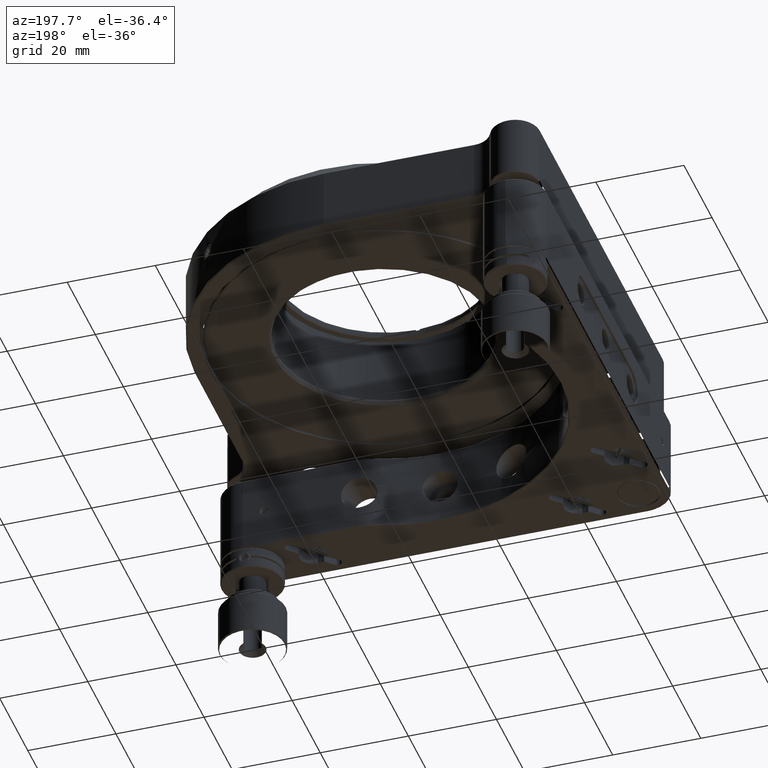
[diagram: clean part render]
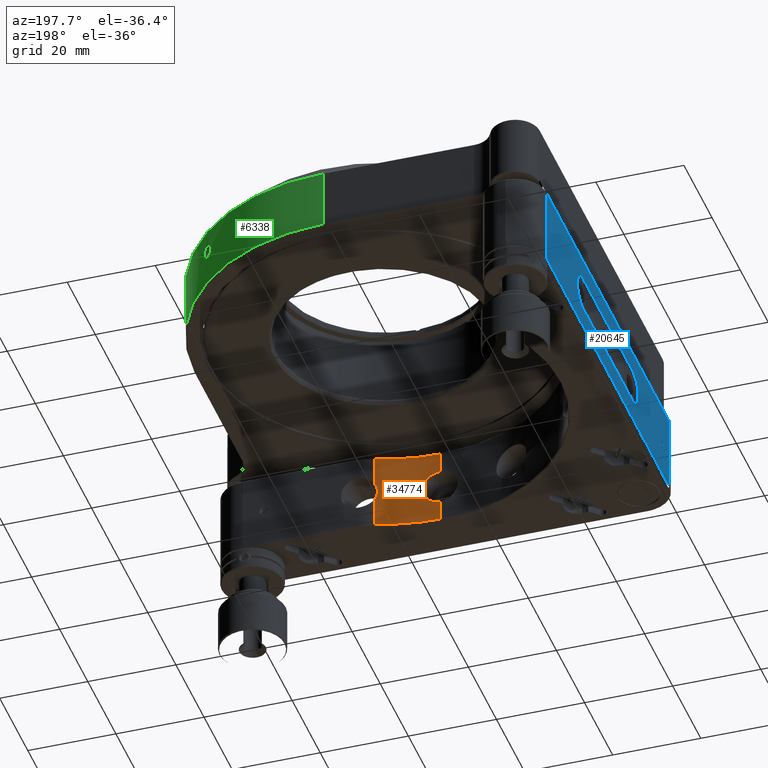
[diagram: same view with three faces highlighted in distinct colors, each labeled with its STEP entity id]
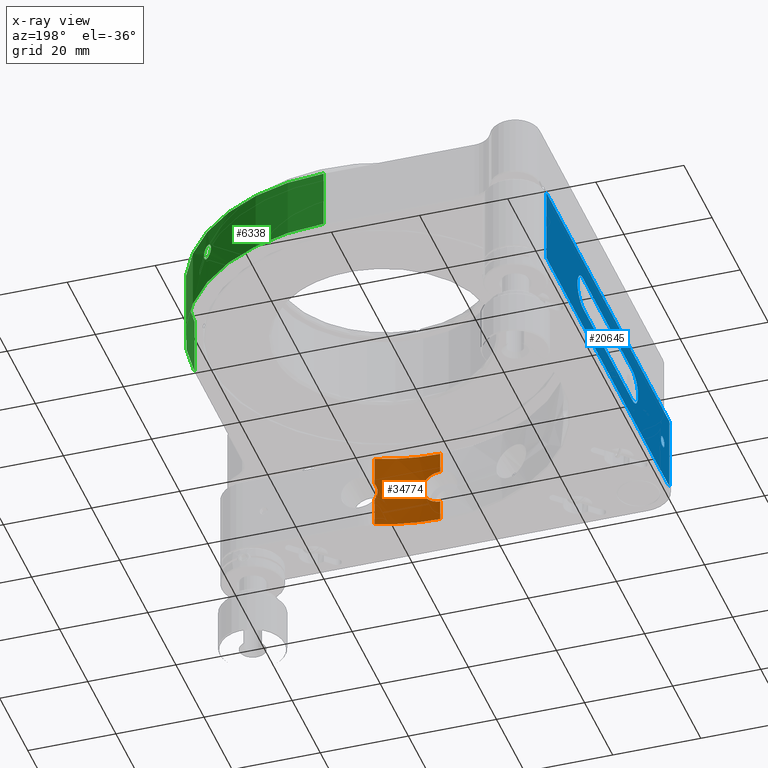
[diagram: x-ray of the same camera — body ghosted, the three highlighted faces saturated]
A machine part, auxiliary view with three faces highlighted in distinct colors.
The next image is the same camera in x-ray (body ghosted, the three faces saturated) — at least one of them is partly hidden behind the body in this view.
Their STEP definitions:

[orange] entity #34774 — the highlighted face is a freeform B-spline surface patch.
#690 = VERTEX_POINT ( 'NONE', #14595 ) ;
#780 = CARTESIAN_POINT ( 'NONE',  ( 13.63287937804751593, -37.60510415909933357, -1.026770556983841676 ) ) ;
#1533 = DIRECTION ( 'NONE',  ( 0.000000000000000000, 0.000000000000000000, 1.000000000000000000 ) ) ;
#1700 = CARTESIAN_POINT ( 'NONE',  ( 39.99999999999997868, -39.99999999999999289, 10.50119999999999543 ) ) ;
#1863 = CARTESIAN_POINT ( 'NONE',  ( 3.519397071731725113, -39.84538642004867626, -1.973360513163583185 ) ) ;
#1928 = EDGE_CURVE ( 'NONE', #690, #8670, #21361, .T. ) ;
#2097 = EDGE_CURVE ( 'NONE', #2137, #26670, #9236, .T. ) ;
#2137 = VERTEX_POINT ( 'NONE', #19058 ) ;
#2278 = CARTESIAN_POINT ( 'NONE',  ( 2.449293598294706513E-15, 40.00000000000000000, -10.50120000000001319 ) ) ;
#2463 = CARTESIAN_POINT ( 'NONE',  ( 14.07999999999999119, -37.44000000000000483, -2.074511990806465977 ) ) ;
#3799 = EDGE_CURVE ( 'NONE', #32766, #2137, #25277, .T. ) ;
#3901 = CARTESIAN_POINT ( 'NONE',  ( 3.215418730733079045, -39.87244594441865075, 2.441187104894928073 ) ) ;
#3988 = CARTESIAN_POINT ( 'NONE',  ( 1.656376832334223923E-15, 6.350470583435192552E-15, 8.749999999999991118 ) ) ;
#4106 = CARTESIAN_POINT ( 'NONE',  ( 3.885522015518404260, -39.81086367741998089, 0.9833877114194381486 ) ) ;
#4110 = AXIS2_PLACEMENT_3D ( 'NONE', #23801, #12160, #35820 ) ;
#4137 = CARTESIAN_POINT ( 'NONE',  ( 13.56973177621848770, -37.62804346736849936, -0.7495624359231507494 ) ) ;
#5005 = CARTESIAN_POINT ( 'NONE',  ( 0.4765625274126686906, -39.99999999958002661, -3.999999999999995559 ) ) ;
#5196 = CARTESIAN_POINT ( 'NONE',  ( 3.215425191061494381, -39.87244557101547571, -2.441178943521482569 ) ) ;
#5980 = ORIENTED_EDGE ( 'NONE', *, *, #33314, .F. ) ;
#6271 = CARTESIAN_POINT ( 'NONE',  ( -7.347880794884118356E-15, -40.00000000000000000, -8.673617379884035472E-15 ) ) ;
#6952 = DIRECTION ( 'NONE',  ( 8.673617379884037937E-17, -8.673617379884036705E-17, -1.000000000000000000 ) ) ;
#7237 = DIRECTION ( 'NONE',  ( 0.000000000000000000, 0.000000000000000000, 1.000000000000000000 ) ) ;
#7287 = CARTESIAN_POINT ( 'NONE',  ( 13.50055325483618418, -37.65283144926868886, -0.1976777488494766422 ) ) ;
#7312 = CARTESIAN_POINT ( 'NONE',  ( 3.001117515795942703E-15, -40.00000000000000000, 3.999999999999994671 ) ) ;
#7472 = CARTESIAN_POINT ( 'NONE',  ( 14.07999999999999119, -37.44000000000000483, -2.074511990806465977 ) ) ;
#7998 = FACE_OUTER_BOUND ( 'NONE', #20945, .T. ) ;
#8670 = VERTEX_POINT ( 'NONE', #13414 ) ;
#9236 = LINE ( 'NONE', #6271, #37662 ) ;
#9849 = CARTESIAN_POINT ( 'NONE',  ( 13.51394774053591163, -37.64818490931023121, -0.3819421727681659440 ) ) ;
#10209 = CARTESIAN_POINT ( 'NONE',  ( 3.978614652292685960, -39.80169512250888886, 0.4847248421640010796 ) ) ;
#10419 = ORIENTED_EDGE ( 'NONE', *, *, #1928, .F. ) ;
#10778 = EDGE_CURVE ( 'NONE', #38081, #690, #36834, .T. ) ;
#10951 = CARTESIAN_POINT ( 'NONE',  ( -39.99999999999999289, 39.99999999999999289, -10.50120000000001319 ) ) ;
#10977 = DIRECTION ( 'NONE',  ( -0.000000000000000000, -0.000000000000000000, -1.000000000000000000 ) ) ;
#11336 = CARTESIAN_POINT ( 'NONE',  ( 40.00000000000000000, 0.000000000000000000, -10.50120000000001319 ) ) ;
#12160 = DIRECTION ( 'NONE',  ( 4.336808689942017120E-17, 4.336808689942018352E-17, 1.000000000000000000 ) ) ;
#12760 = CARTESIAN_POINT ( 'NONE',  ( 3.999999609537605139, -39.79949734221266056, 0.2383544001114116795 ) ) ;
#12962 = CARTESIAN_POINT ( 'NONE',  ( 3.519391159990551632, -39.84538684044147772, 1.973370648552619899 ) ) ;
#13414 = CARTESIAN_POINT ( 'NONE',  ( -4.310163876117375622E-15, -40.00000000000000711, 8.749999999999994671 ) ) ;
#13522 = CARTESIAN_POINT ( 'NONE',  ( 14.07999999999999474, -37.44000000000001194, -8.750000000000017764 ) ) ;
#13864 = CARTESIAN_POINT ( 'NONE',  ( 1.975878666759980584, -39.95420158969062641, -3.518120793756081444 ) ) ;
#13888 = CARTESIAN_POINT ( 'NONE',  ( -7.347880794884118356E-15, -40.00000000000000000, 10.50119999999999543 ) ) ;
#13938 = EDGE_CURVE ( 'NONE', #8670, #32766, #32063, .T. ) ;
#14091 = CARTESIAN_POINT ( 'NONE',  ( 5.884233204720381923E-16, -40.00000000000000711, -8.750000000000017764 ) ) ;
#14274 = CARTESIAN_POINT ( 'NONE',  ( 39.99999999999999289, 39.99999999999999289, 10.50119999999999543 ) ) ;
#14595 = CARTESIAN_POINT ( 'NONE',  ( 14.07999999999999829, -37.44000000000001194, 8.749999999999998224 ) ) ;
#15903 = CARTESIAN_POINT ( 'NONE',  ( 1.975873954369209429, -39.95420231395690536, 3.518123257257119274 ) ) ;
#15978 = B_SPLINE_CURVE_WITH_KNOTS ( 'NONE', 3,
 ( #7472, #30934, #19487, #780, #28366, #4137, #30737, #9849, #7287, #21866, #22067, #24633, #36665, #19298, #27778, #31515 ),
 .UNSPECIFIED., .F., .F.,
 ( 4, 2, 2, 2, 2, 2, 2, 4 ),
 ( -0.006660683217793022040, -0.005568962689862774762, -0.005296032557880212509, -0.005023102425897651123, -0.004477242161932526616, -0.003931381897967402977, -0.003385521634002277604, -0.002293801106072025121 ),
 .UNSPECIFIED. ) ;
#15997 = VECTOR ( 'NONE', #1533, 1000.000000000000000 ) ;
#16109 = CARTESIAN_POINT ( 'NONE',  ( 3.690136085475475221E-15, -40.00000000000000000, -3.999999999999994227 ) ) ;
#16661 = CARTESIAN_POINT ( 'NONE',  ( -7.347880794884118356E-15, -40.00000000000000000, -10.50120000000001319 ) ) ;
#16914 =( BOUNDED_SURFACE ( )  B_SPLINE_SURFACE ( 1, 2, ( 
 ( #11336, #38157, #2278, #10951, #23368, #37773, #16661, #37957, #25742 ),
 ( #32429, #14274, #20002, #29270, #22979, #20198, #13888, #1700, #25926 ) ),
 .UNSPECIFIED., .F., .F., .F. ) 
 B_SPLINE_SURFACE_WITH_KNOTS ( ( 2, 2 ),
 ( 3, 2, 2, 2, 3 ),
 ( 0.000000000000000000, 21.00240000000001217 ),
 ( 0.000000000000000000, 1.570796326794896558, 3.141592653589793116, 4.712388980384689674, 6.283185307179586232 ),
 .UNSPECIFIED. ) 
 GEOMETRIC_REPRESENTATION_ITEM ( )  RATIONAL_B_SPLINE_SURFACE ( (
 ( 1.000000000000000000, 0.7071067811865475727, 1.000000000000000000, 0.7071067811865475727, 1.000000000000000000, 0.7071067811865475727, 1.000000000000000000, 0.7071067811865475727, 1.000000000000000000),
 ( 1.000000000000000000, 0.7071067811865475727, 1.000000000000000000, 0.7071067811865475727, 1.000000000000000000, 0.7071067811865475727, 1.000000000000000000, 0.7071067811865475727, 1.000000000000000000) ) ) 
 REPRESENTATION_ITEM ( '' )  SURFACE ( )  );
#17886 = EDGE_CURVE ( 'NONE', #38838, #21712, #34229, .T. ) ;
#18303 = ORIENTED_EDGE ( 'NONE', *, *, #13938, .F. ) ;
#19058 = CARTESIAN_POINT ( 'NONE',  ( 3.690136085475475221E-15, -40.00000000000000000, -3.999999999999994227 ) ) ;
#19063 = CARTESIAN_POINT ( 'NONE',  ( 0.4765613040638119746, -39.99999999958063057, 3.999999999999995559 ) ) ;
#19298 = CARTESIAN_POINT ( 'NONE',  ( 13.75661566367995370, -37.56017539286534657, 1.459813531991916546 ) ) ;
#19418 = ORIENTED_EDGE ( 'NONE', *, *, #10778, .F. ) ;
#19435 = CARTESIAN_POINT ( 'NONE',  ( 14.07999999999999652, -37.44000000000001194, -5.412255995403238096 ) ) ;
#19487 = CARTESIAN_POINT ( 'NONE',  ( 13.76448059959076531, -37.55748766687482743, -1.479178728847029278 ) ) ;
#20002 = CARTESIAN_POINT ( 'NONE',  ( 2.449293598294706513E-15, 40.00000000000000000, 10.50119999999999543 ) ) ;
#20175 = CARTESIAN_POINT ( 'NONE',  ( 3.813545314633025818, -39.81795139080806933, 1.235697615372659541 ) ) ;
#20198 = CARTESIAN_POINT ( 'NONE',  ( -39.99999999999999289, -39.99999999999999289, 10.50119999999999543 ) ) ;
#20945 = EDGE_LOOP ( 'NONE', ( #37735, #29751, #18303, #10419, #19418, #21404, #38872, #5980 ) ) ;
#21361 = CIRCLE ( 'NONE', #30728, 39.99999999999999289 ) ;
#21404 = ORIENTED_EDGE ( 'NONE', *, *, #36143, .F. ) ;
#21712 = VERTEX_POINT ( 'NONE', #2463 ) ;
#21866 = CARTESIAN_POINT ( 'NONE',  ( 13.49947998839582475, -37.65319942009507770, 0.1746149951927875865 ) ) ;
#22067 = CARTESIAN_POINT ( 'NONE',  ( 13.51183360570558456, -37.64894075618875746, 0.3591353039863156571 ) ) ;
#22979 = CARTESIAN_POINT ( 'NONE',  ( -40.00000000000000000, 4.898587196589413026E-15, 10.50119999999999543 ) ) ;
#23146 = CARTESIAN_POINT ( 'NONE',  ( 4.000000390451672772, -39.79949762397258439, -0.2383412946594437865 ) ) ;
#23368 = CARTESIAN_POINT ( 'NONE',  ( -40.00000000000000000, 4.898587196589413026E-15, -10.50120000000001319 ) ) ;
#23801 = CARTESIAN_POINT ( 'NONE',  ( -5.282517071573005440E-15, -7.370623937094102200E-15, -8.750000000000023093 ) ) ;
#24633 = CARTESIAN_POINT ( 'NONE',  ( 13.56222754469781933, -37.63080504790737280, 0.7269095166608742220 ) ) ;
#24997 = CARTESIAN_POINT ( 'NONE',  ( 14.07999999999999474, -37.44000000000000483, 5.412255995403233655 ) ) ;
#25277 = B_SPLINE_CURVE_WITH_KNOTS ( 'NONE', 3,
 ( #31097, #19063, #37027, #15903, #28860, #3901, #12962, #20175, #4106, #10209, #12760, #23146, #32202, #35172, #27746, #1863, #5196, #34987, #13864, #26096, #5005, #16109 ),
 .UNSPECIFIED., .F., .F.,
 ( 4, 2, 2, 2, 2, 2, 2, 2, 2, 2, 4 ),
 ( -0.02502434335384317796, -0.02346050532294523955, -0.02189666729204730461, -0.02033282926114936620, -0.01955091024570039873, -0.01876899123025143126, -0.01798707221480246032, -0.01720515319935349285, -0.01564131516845555792, -0.01407747713755762124, -0.01251363910665968630 ),
 .UNSPECIFIED. ) ;
#25476 = DIRECTION ( 'NONE',  ( -1.320629267893251311E-16, 1.000000000000000000, -8.673617379884036705E-17 ) ) ;
#25742 = CARTESIAN_POINT ( 'NONE',  ( 40.00000000000000000, 0.000000000000000000, -10.50120000000001319 ) ) ;
#25926 = CARTESIAN_POINT ( 'NONE',  ( 40.00000000000000000, 0.000000000000000000, 10.50119999999999543 ) ) ;
#26096 = CARTESIAN_POINT ( 'NONE',  ( 0.9908095383407984347, -39.99076998910314273, -3.911466078588563544 ) ) ;
#26227 = DIRECTION ( 'NONE',  ( -0.000000000000000000, -0.000000000000000000, -1.000000000000000000 ) ) ;
#26670 = VERTEX_POINT ( 'NONE', #14091 ) ;
#27746 = CARTESIAN_POINT ( 'NONE',  ( 3.813549650651678391, -39.81795192455354027, -1.235684396547622743 ) ) ;
#27778 = CARTESIAN_POINT ( 'NONE',  ( 13.90692471868812774, -37.50508813998054336, 1.789183458260129811 ) ) ;
#28366 = CARTESIAN_POINT ( 'NONE',  ( 13.60932041941838300, -37.61366420402151078, -0.9335226603886006558 ) ) ;
#28860 = CARTESIAN_POINT ( 'NONE',  ( 2.443252372976513431, -39.92717707775732094, 3.213849706660070638 ) ) ;
#29270 = CARTESIAN_POINT ( 'NONE',  ( -39.99999999999999289, 39.99999999999999289, 10.50119999999999543 ) ) ;
#29751 = ORIENTED_EDGE ( 'NONE', *, *, #3799, .F. ) ;
#30728 = AXIS2_PLACEMENT_3D ( 'NONE', #3988, #6952, #25476 ) ;
#30737 = CARTESIAN_POINT ( 'NONE',  ( 13.55335291703554290, -37.63398285802266230, -0.6577232793184515369 ) ) ;
#30934 = CARTESIAN_POINT ( 'NONE',  ( 13.90799321473310179, -37.50468631240804740, -1.790944959996450203 ) ) ;
#31097 = CARTESIAN_POINT ( 'NONE',  ( 3.001117515795942703E-15, -40.00000000000000000, 3.999999999999994671 ) ) ;
#31515 = CARTESIAN_POINT ( 'NONE',  ( 14.07999999999999297, -37.44000000000000483, 2.074511990806471307 ) ) ;
#32063 = LINE ( 'NONE', #34642, #39007 ) ;
#32202 = CARTESIAN_POINT ( 'NONE',  ( 3.978616284994584085, -39.80169473619176301, -0.4847113597111002425 ) ) ;
#32429 = CARTESIAN_POINT ( 'NONE',  ( 40.00000000000000000, 0.000000000000000000, 10.50119999999999543 ) ) ;
#32676 = VECTOR ( 'NONE', #7237, 1000.000000000000000 ) ;
#32720 = CARTESIAN_POINT ( 'NONE',  ( 14.07999999999999297, -37.44000000000000483, 2.074511990806471307 ) ) ;
#32766 = VERTEX_POINT ( 'NONE', #7312 ) ;
#33314 = EDGE_CURVE ( 'NONE', #26670, #38838, #38091, .T. ) ;
#34229 = LINE ( 'NONE', #19435, #32676 ) ;
#34642 = CARTESIAN_POINT ( 'NONE',  ( -7.347880794884118356E-15, -40.00000000000000000, -8.673617379884035472E-15 ) ) ;
#34774 = ADVANCED_FACE ( 'NONE', ( #7998 ), #16914, .T. ) ;
#34987 = CARTESIAN_POINT ( 'NONE',  ( 2.443258331880643563, -39.92717674125447758, -3.213845440792278296 ) ) ;
#35172 = CARTESIAN_POINT ( 'NONE',  ( 3.885525414005050138, -39.81086333955284573, -0.9833742433976793151 ) ) ;
#35820 = DIRECTION ( 'NONE',  ( 4.140942080835557836E-17, 1.000000000000000000, -4.336808689942015271E-17 ) ) ;
#36143 = EDGE_CURVE ( 'NONE', #21712, #38081, #15978, .T. ) ;
#36665 = CARTESIAN_POINT ( 'NONE',  ( 13.60082491177641906, -37.61676486160759225, 0.9123755207011845503 ) ) ;
#36834 = LINE ( 'NONE', #24997, #15997 ) ;
#37027 = CARTESIAN_POINT ( 'NONE',  ( 0.9908066813477114376, -39.99076952265112794, 3.911466637593215889 ) ) ;
#37662 = VECTOR ( 'NONE', #26227, 1000.000000000000000 ) ;
#37735 = ORIENTED_EDGE ( 'NONE', *, *, #2097, .F. ) ;
#37773 = CARTESIAN_POINT ( 'NONE',  ( -39.99999999999999289, -39.99999999999999289, -10.50120000000001319 ) ) ;
#37957 = CARTESIAN_POINT ( 'NONE',  ( 39.99999999999997868, -39.99999999999999289, -10.50120000000001319 ) ) ;
#38081 = VERTEX_POINT ( 'NONE', #32720 ) ;
#38091 = CIRCLE ( 'NONE', #4110, 40.00000000000002132 ) ;
#38157 = CARTESIAN_POINT ( 'NONE',  ( 39.99999999999999289, 39.99999999999999289, -10.50120000000001319 ) ) ;
#38838 = VERTEX_POINT ( 'NONE', #13522 ) ;
#38872 = ORIENTED_EDGE ( 'NONE', *, *, #17886, .F. ) ;
#39007 = VECTOR ( 'NONE', #10977, 1000.000000000000000 ) ;

[blue] entity #20645 — the highlighted planar face has unit normal (-1, -0, 0).
#91 = CARTESIAN_POINT ( 'NONE',  ( -50.79999999999999716, -38.04407768234457876, -0.7618446353109037394 ) ) ;
#285 = FACE_OUTER_BOUND ( 'NONE', #9765, .T. ) ;
#546 = CARTESIAN_POINT ( 'NONE',  ( -50.80000000000000426, 21.41408504474602381, -0.9799910367119678556 ) ) ;
#1137 = CARTESIAN_POINT ( 'NONE',  ( -50.80000000000001137, 18.47999103671197574, -3.914085044746025588 ) ) ;
#1145 = LINE ( 'NONE', #22029, #19385 ) ;
#1937 = CARTESIAN_POINT ( 'NONE',  ( -50.79999999999999716, -39.05000000000002558, 1.249999999999988898 ) ) ;
#2211 = EDGE_CURVE ( 'NONE', #3542, #32251, #1145, .T. ) ;
#2523 = VECTOR ( 'NONE', #28110, 1000.000000000000000 ) ;
#2718 = CARTESIAN_POINT ( 'NONE',  ( -50.79999999999999716, -40.27315157648312294, 0.3062471989724875887 ) ) ;
#2796 = DIRECTION ( 'NONE',  ( -0.000000000000000000, -0.000000000000000000, -1.000000000000000000 ) ) ;
#3040 = CARTESIAN_POINT ( 'NONE',  ( -50.79999999999998295, -38.43601042506782761, 1.101319176172932179 ) ) ;
#3430 = CARTESIAN_POINT ( 'NONE',  ( -50.79999999999999716, -38.43601042506782761, -1.101319176172930625 ) ) ;
#3542 = VERTEX_POINT ( 'NONE', #18673 ) ;
#3545 = CARTESIAN_POINT ( 'NONE',  ( -50.80000000000001847, -17.97140452079104733, 4.000000000000006217 ) ) ;
#3774 = B_SPLINE_CURVE_WITH_KNOTS ( 'NONE', 3,
 ( #9804, #16097, #1137, #12946, #15890, #9998, #13331, #546, #15696, #31282, #27733, #24787, #12745, #33658, #30697, #24592, #36818, #33847 ),
 .UNSPECIFIED., .F., .F.,
 ( 4, 2, 2, 2, 2, 2, 2, 2, 4 ),
 ( -12.56637061435916891, -10.99557428756427235, -9.424777960769375795, -7.853981633974481014, -6.283185307179584456, -4.712388980384687898, -3.141592653589793116, -1.570796326794896558, 0.000000000000000000 ),
 .UNSPECIFIED. ) ;
#4018 = B_SPLINE_CURVE_WITH_KNOTS ( 'NONE', 3,
 ( #36365, #6188, #6381, #3040, #33000, #15043, #12305, #32796, #8946, #18393, #26884, #6581, #91, #11710, #3430, #30424, #27469, #15236 ),
 .UNSPECIFIED., .F., .F.,
 ( 4, 2, 2, 2, 2, 2, 2, 2, 4 ),
 ( -3.926990816987200983, -3.436116964863801027, -2.945243112740400626, -2.454369260617000670, -1.963495408493600491, -1.472621556370200313, -0.9817477042468003567, -0.4908738521233999563, 0.000000000000000000 ),
 .UNSPECIFIED. ) ;
#4368 = CARTESIAN_POINT ( 'NONE',  ( -50.80000000000000426, -39.35624719897250401, 1.223151576483120895 ) ) ;
#5008 = AXIS2_PLACEMENT_3D ( 'NONE', #33002, #21554, #12672 ) ;
#5075 = CARTESIAN_POINT ( 'NONE',  ( -50.79999999999999716, -39.66398957493219513, 1.101319176172933068 ) ) ;
#5762 = LINE ( 'NONE', #14418, #36196 ) ;
#6128 = EDGE_CURVE ( 'NONE', #28092, #26520, #37900, .T. ) ;
#6130 = CARTESIAN_POINT ( 'NONE',  ( -50.80000000000000426, 52.56119999999997816, 3.999999999999994671 ) ) ;
#6188 = CARTESIAN_POINT ( 'NONE',  ( -50.79999999999999716, -38.90268608725281752, 1.249999999999988898 ) ) ;
#6381 = CARTESIAN_POINT ( 'NONE',  ( -50.80000000000000426, -38.74375280102753294, 1.223151576483118230 ) ) ;
#6540 = CARTESIAN_POINT ( 'NONE',  ( -50.79999999999999716, -39.05000000000002558, -1.249999999999987121 ) ) ;
#6581 = CARTESIAN_POINT ( 'NONE',  ( -50.79999999999999005, -37.94868082382705410, -0.6139895749321856444 ) ) ;
#7236 = CARTESIAN_POINT ( 'NONE',  ( -50.79999999999999716, -39.05000000000002558, -1.249999999999987121 ) ) ;
#7470 = CARTESIAN_POINT ( 'NONE',  ( -50.80000000000000426, -21.41408504474603092, -0.9799910367119645249 ) ) ;
#8454 = CARTESIAN_POINT ( 'NONE',  ( -50.79999999999999716, 43.79999999999998295, -8.750000000000012434 ) ) ;
#8465 = EDGE_CURVE ( 'NONE', #11608, #3542, #5762, .T. ) ;
#8946 = CARTESIAN_POINT ( 'NONE',  ( -50.80000000000000426, -37.80000000000002558, 0.1473139127471958243 ) ) ;
#8996 = LINE ( 'NONE', #26536, #18880 ) ;
#9156 = PLANE ( 'NONE',  #5008 ) ;
#9498 = CARTESIAN_POINT ( 'NONE',  ( -50.79999999999998295, -39.66398957493219513, -1.101319176172933290 ) ) ;
#9689 = CARTESIAN_POINT ( 'NONE',  ( -50.79999999999999716, -39.05000000000002558, 1.249999999999988898 ) ) ;
#9765 = EDGE_LOOP ( 'NONE', ( #17775, #21286, #36647, #36864 ) ) ;
#9804 = CARTESIAN_POINT ( 'NONE',  ( -50.80000000000001137, 17.49999999999999645, -4.000000000000000888 ) ) ;
#9998 = CARTESIAN_POINT ( 'NONE',  ( -50.80000000000000426, 20.71895141649746463, -2.437902832994920832 ) ) ;
#10038 = CARTESIAN_POINT ( 'NONE',  ( -50.79999999999999716, -20.71895141649746108, -2.437902832994916391 ) ) ;
#10279 = CARTESIAN_POINT ( 'NONE',  ( -50.79999999999999716, -40.05592231765545819, 0.7618446353109054048 ) ) ;
#11608 = VERTEX_POINT ( 'NONE', #8454 ) ;
#11710 = CARTESIAN_POINT ( 'NONE',  ( -50.79999999999999005, -38.28815536468913194, -1.005922317655445042 ) ) ;
#12284 = EDGE_CURVE ( 'NONE', #17286, #35337, #4018, .T. ) ;
#12305 = CARTESIAN_POINT ( 'NONE',  ( -50.80000000000000426, -37.94868082382707541, 0.6139895749321873097 ) ) ;
#12308 = FACE_BOUND ( 'NONE', #23317, .T. ) ;
#12451 = CARTESIAN_POINT ( 'NONE',  ( -50.80000000000000426, -39.35624719897251111, -1.223151576483120895 ) ) ;
#12492 = EDGE_CURVE ( 'NONE', #30626, #28092, #14979, .T. ) ;
#12672 = DIRECTION ( 'NONE',  ( 6.759194384451841697E-17, -1.000000000000000000, 0.000000000000000000 ) ) ;
#12745 = CARTESIAN_POINT ( 'NONE',  ( -50.80000000000001137, 20.71895141649745398, 2.437902832994915503 ) ) ;
#12946 = CARTESIAN_POINT ( 'NONE',  ( -50.79999999999999005, 19.46476663978300792, -3.524221363753422764 ) ) ;
#13331 = CARTESIAN_POINT ( 'NONE',  ( -50.80000000000000426, 21.02422136375341921, -1.964766639783017022 ) ) ;
#14418 = CARTESIAN_POINT ( 'NONE',  ( -50.80000000000000426, 43.79999999999998295, -10.50120000000001141 ) ) ;
#14517 = EDGE_CURVE ( 'NONE', #32251, #38565, #23694, .T. ) ;
#14979 = LINE ( 'NONE', #6130, #26017 ) ;
#15043 = CARTESIAN_POINT ( 'NONE',  ( -50.79999999999999005, -38.04407768234454323, 0.7618446353109030733 ) ) ;
#15090 = CARTESIAN_POINT ( 'NONE',  ( -50.79999999999999716, -43.80000000000000426, 8.749999999999998224 ) ) ;
#15116 = CARTESIAN_POINT ( 'NONE',  ( -50.79999999999999716, -43.80000000000001137, -8.750000000000010658 ) ) ;
#15179 = ORIENTED_EDGE ( 'NONE', *, *, #12284, .F. ) ;
#15236 = CARTESIAN_POINT ( 'NONE',  ( -50.79999999999999716, -39.05000000000002558, -1.249999999999987121 ) ) ;
#15314 = CARTESIAN_POINT ( 'NONE',  ( -50.79999999999999716, -17.50000000000000711, -3.999999999999993339 ) ) ;
#15355 = CARTESIAN_POINT ( 'NONE',  ( -50.80000000000000426, -21.02422136375344408, 1.964766639783015689 ) ) ;
#15590 = CARTESIAN_POINT ( 'NONE',  ( -50.80000000000000426, -40.29999999999996874, -0.1473139127471957688 ) ) ;
#15696 = CARTESIAN_POINT ( 'NONE',  ( -50.80000000000000426, 21.49999999999999289, -0.4714045207910346758 ) ) ;
#15890 = CARTESIAN_POINT ( 'NONE',  ( -50.80000000000000426, 19.93790283299491506, -3.218951416497461970 ) ) ;
#16094 = EDGE_CURVE ( 'NONE', #38565, #11608, #31261, .T. ) ;
#16097 = CARTESIAN_POINT ( 'NONE',  ( -50.79999999999999716, 17.97140452079103312, -4.000000000000001776 ) ) ;
#16175 = CARTESIAN_POINT ( 'NONE',  ( -50.80000000000000426, -17.50000000000000711, 4.000000000000002665 ) ) ;
#17007 = EDGE_LOOP ( 'NONE', ( #18900, #29946, #30551, #38857 ) ) ;
#17286 = VERTEX_POINT ( 'NONE', #9689 ) ;
#17395 = EDGE_CURVE ( 'NONE', #35337, #17286, #36355, .T. ) ;
#17775 = ORIENTED_EDGE ( 'NONE', *, *, #14517, .F. ) ;
#18393 = CARTESIAN_POINT ( 'NONE',  ( -50.79999999999999005, -37.80000000000001847, -0.1473139127471958243 ) ) ;
#18556 = CARTESIAN_POINT ( 'NONE',  ( -50.80000000000000426, -40.15131917617294732, -0.6139895749321856444 ) ) ;
#18673 = CARTESIAN_POINT ( 'NONE',  ( -50.80000000000000426, 43.79999999999997584, 8.750000000000000000 ) ) ;
#18880 = VECTOR ( 'NONE', #20619, 1000.000000000000000 ) ;
#18900 = ORIENTED_EDGE ( 'NONE', *, *, #6128, .T. ) ;
#19026 = CARTESIAN_POINT ( 'NONE',  ( -50.80000000000000426, 52.56119999999997816, -8.750000000000012434 ) ) ;
#19385 = VECTOR ( 'NONE', #27741, 1000.000000000000000 ) ;
#20173 = EDGE_CURVE ( 'NONE', #26520, #27115, #8996, .T. ) ;
#20619 = DIRECTION ( 'NONE',  ( -6.759194384451841697E-17, 1.000000000000000000, -0.000000000000000000 ) ) ;
#20645 = ADVANCED_FACE ( 'NONE', ( #285, #21367, #12308 ), #9156, .T. ) ;
#21286 = ORIENTED_EDGE ( 'NONE', *, *, #2211, .F. ) ;
#21290 = CARTESIAN_POINT ( 'NONE',  ( -50.80000000000000426, -17.50000000000000711, 4.000000000000002665 ) ) ;
#21367 = FACE_BOUND ( 'NONE', #17007, .T. ) ;
#21520 = CARTESIAN_POINT ( 'NONE',  ( -50.80000000000000426, -39.81184463531091211, -1.005922317655445264 ) ) ;
#21554 = DIRECTION ( 'NONE',  ( -1.000000000000000000, -6.759194384451841697E-17, 0.000000000000000000 ) ) ;
#21670 = CARTESIAN_POINT ( 'NONE',  ( -50.80000000000000426, -18.47999103671196508, 3.914085044746024700 ) ) ;
#22029 = CARTESIAN_POINT ( 'NONE',  ( -50.79999999999999005, -52.56119999999999948, 8.750000000000001776 ) ) ;
#22453 = CARTESIAN_POINT ( 'NONE',  ( -50.79999999999999005, -17.97140452079103667, -3.999999999999992450 ) ) ;
#22640 = CARTESIAN_POINT ( 'NONE',  ( -50.80000000000000426, -19.46476663978302923, -3.524221363753415215 ) ) ;
#23290 = ORIENTED_EDGE ( 'NONE', *, *, #17395, .F. ) ;
#23317 = EDGE_LOOP ( 'NONE', ( #23290, #15179 ) ) ;
#23694 = LINE ( 'NONE', #29777, #24525 ) ;
#24259 = CARTESIAN_POINT ( 'NONE',  ( -50.80000000000000426, -19.93790283299492927, 3.218951416497462859 ) ) ;
#24525 = VECTOR ( 'NONE', #2796, 1000.000000000000000 ) ;
#24592 = CARTESIAN_POINT ( 'NONE',  ( -50.80000000000001137, 18.47999103671197219, 3.914085044746016262 ) ) ;
#24787 = CARTESIAN_POINT ( 'NONE',  ( -50.80000000000000426, 21.02422136375341566, 1.964766639783011026 ) ) ;
#25607 = CARTESIAN_POINT ( 'NONE',  ( -50.79999999999999005, -18.47999103671197929, -3.914085044746014486 ) ) ;
#25792 = CARTESIAN_POINT ( 'NONE',  ( -50.79999999999999716, -21.02422136375342276, -1.964766639783013247 ) ) ;
#26017 = VECTOR ( 'NONE', #33140, 1000.000000000000000 ) ;
#26456 = DIRECTION ( 'NONE',  ( 0.000000000000000000, 0.000000000000000000, 1.000000000000000000 ) ) ;
#26520 = VERTEX_POINT ( 'NONE', #15314 ) ;
#26536 = CARTESIAN_POINT ( 'NONE',  ( -50.80000000000000426, 52.56119999999997816, -3.999999999999992450 ) ) ;
#26763 = CARTESIAN_POINT ( 'NONE',  ( -50.79999999999999005, -40.29999999999999716, 0.1473139127471957133 ) ) ;
#26884 = CARTESIAN_POINT ( 'NONE',  ( -50.79999999999999716, -37.82684842351687848, -0.3062471989724853683 ) ) ;
#27115 = VERTEX_POINT ( 'NONE', #30990 ) ;
#27434 = CARTESIAN_POINT ( 'NONE',  ( -50.79999999999999716, -39.19731391274721943, -1.249999999999987121 ) ) ;
#27469 = CARTESIAN_POINT ( 'NONE',  ( -50.80000000000000426, -38.90268608725283173, -1.249999999999987343 ) ) ;
#27733 = CARTESIAN_POINT ( 'NONE',  ( -50.80000000000001137, 21.41408504474602026, 0.9799910367119630816 ) ) ;
#27741 = DIRECTION ( 'NONE',  ( 1.351838876890368339E-16, -1.000000000000000000, -0.000000000000000000 ) ) ;
#28092 = VERTEX_POINT ( 'NONE', #16175 ) ;
#28110 = DIRECTION ( 'NONE',  ( -6.759194384451841697E-17, 1.000000000000000000, -0.000000000000000000 ) ) ;
#28745 = CARTESIAN_POINT ( 'NONE',  ( -50.79999999999999716, -17.50000000000000711, -3.999999999999993339 ) ) ;
#29716 = CARTESIAN_POINT ( 'NONE',  ( -50.80000000000000426, 17.49999999999999645, 3.999999999999994671 ) ) ;
#29777 = CARTESIAN_POINT ( 'NONE',  ( -50.79999999999999716, -43.80000000000001137, -10.50120000000001141 ) ) ;
#29946 = ORIENTED_EDGE ( 'NONE', *, *, #20173, .T. ) ;
#30424 = CARTESIAN_POINT ( 'NONE',  ( -50.80000000000000426, -38.74375280102754004, -1.223151576483116676 ) ) ;
#30549 = CARTESIAN_POINT ( 'NONE',  ( -50.80000000000000426, -21.41408504474603802, 0.9799910367119654131 ) ) ;
#30551 = ORIENTED_EDGE ( 'NONE', *, *, #36484, .T. ) ;
#30592 = CARTESIAN_POINT ( 'NONE',  ( -50.79999999999999005, -40.27315157648312294, -0.3062471989724853128 ) ) ;
#30626 = VERTEX_POINT ( 'NONE', #29716 ) ;
#30697 = CARTESIAN_POINT ( 'NONE',  ( -50.80000000000001137, 19.46476663978301502, 3.524221363753414771 ) ) ;
#30990 = CARTESIAN_POINT ( 'NONE',  ( -50.80000000000001137, 17.49999999999999645, -4.000000000000000888 ) ) ;
#31261 = LINE ( 'NONE', #19026, #2523 ) ;
#31282 = CARTESIAN_POINT ( 'NONE',  ( -50.80000000000000426, 21.49999999999999289, 0.4714045207910277924 ) ) ;
#31320 = CARTESIAN_POINT ( 'NONE',  ( -50.79999999999999716, -21.50000000000001421, 0.4714045207910331770 ) ) ;
#32251 = VERTEX_POINT ( 'NONE', #15090 ) ;
#32796 = CARTESIAN_POINT ( 'NONE',  ( -50.79999999999999005, -37.82684842351688559, 0.3062471989724871446 ) ) ;
#33000 = CARTESIAN_POINT ( 'NONE',  ( -50.80000000000000426, -38.28815536468911063, 1.005922317655445486 ) ) ;
#33002 = CARTESIAN_POINT ( 'NONE',  ( -50.80000000000000426, 52.56119999999997816, -10.50120000000001141 ) ) ;
#33130 = CARTESIAN_POINT ( 'NONE',  ( -50.80000000000000426, -19.46476663978301502, 3.524221363753421876 ) ) ;
#33140 = DIRECTION ( 'NONE',  ( 6.759194384451841697E-17, -1.000000000000000000, 0.000000000000000000 ) ) ;
#33317 = CARTESIAN_POINT ( 'NONE',  ( -50.80000000000001137, -20.71895141649748240, 2.437902832994921720 ) ) ;
#33547 = CARTESIAN_POINT ( 'NONE',  ( -50.79999999999999005, -40.05592231765542977, -0.7618446353109034064 ) ) ;
#33658 = CARTESIAN_POINT ( 'NONE',  ( -50.80000000000000426, 19.93790283299490795, 3.218951416497454421 ) ) ;
#33847 = CARTESIAN_POINT ( 'NONE',  ( -50.80000000000000426, 17.49999999999999645, 3.999999999999994671 ) ) ;
#34865 = CARTESIAN_POINT ( 'NONE',  ( -50.80000000000000426, -21.50000000000001421, -0.4714045207910296242 ) ) ;
#35056 = CARTESIAN_POINT ( 'NONE',  ( -50.80000000000000426, -39.19731391274721943, 1.249999999999988454 ) ) ;
#35337 = VERTEX_POINT ( 'NONE', #7236 ) ;
#35643 = CARTESIAN_POINT ( 'NONE',  ( -50.79999999999999005, -39.81184463531090501, 1.005922317655446596 ) ) ;
#36196 = VECTOR ( 'NONE', #26456, 1000.000000000000000 ) ;
#36355 = B_SPLINE_CURVE_WITH_KNOTS ( 'NONE', 3,
 ( #6540, #27434, #12451, #9498, #21520, #33547, #18556, #30592, #15590, #26763, #2718, #38595, #10279, #35643, #5075, #4368, #35056, #1937 ),
 .UNSPECIFIED., .F., .F.,
 ( 4, 2, 2, 2, 2, 2, 2, 2, 4 ),
 ( -3.926990816987200983, -3.436116964863801027, -2.945243112740400626, -2.454369260617000670, -1.963495408493600491, -1.472621556370200313, -0.9817477042468003567, -0.4908738521233999563, 0.000000000000000000 ),
 .UNSPECIFIED. ) ;
#36365 = CARTESIAN_POINT ( 'NONE',  ( -50.79999999999999716, -39.05000000000002558, 1.249999999999988898 ) ) ;
#36484 = EDGE_CURVE ( 'NONE', #27115, #30626, #3774, .T. ) ;
#36647 = ORIENTED_EDGE ( 'NONE', *, *, #8465, .F. ) ;
#36818 = CARTESIAN_POINT ( 'NONE',  ( -50.80000000000001137, 17.97140452079102957, 3.999999999999994227 ) ) ;
#36864 = ORIENTED_EDGE ( 'NONE', *, *, #16094, .F. ) ;
#37249 = CARTESIAN_POINT ( 'NONE',  ( -50.79999999999999716, -19.93790283299491861, -3.218951416497453977 ) ) ;
#37900 = B_SPLINE_CURVE_WITH_KNOTS ( 'NONE', 3,
 ( #21290, #3545, #21670, #33130, #24259, #33317, #15355, #30549, #31320, #34865, #7470, #25792, #10038, #37249, #22640, #25607, #22453, #28745 ),
 .UNSPECIFIED., .F., .F.,
 ( 4, 2, 2, 2, 2, 2, 2, 2, 4 ),
 ( -12.56637061435916891, -10.99557428756427235, -9.424777960769375795, -7.853981633974479237, -6.283185307179582679, -4.712388980384687009, -3.141592653589791340, -1.570796326794896558, 0.000000000000000000 ),
 .UNSPECIFIED. ) ;
#38565 = VERTEX_POINT ( 'NONE', #15116 ) ;
#38595 = CARTESIAN_POINT ( 'NONE',  ( -50.79999999999999005, -40.15131917617293311, 0.6139895749321867546 ) ) ;
#38857 = ORIENTED_EDGE ( 'NONE', *, *, #12492, .T. ) ;

[green] entity #6338 — the highlighted face is a freeform B-spline surface patch.
#54 = DIRECTION ( 'NONE',  ( 4.034240641806529130E-17, 4.034240641806528514E-17, 1.000000000000000000 ) ) ;
#66 = CARTESIAN_POINT ( 'NONE',  ( -6.454466168903948966E-13, 4.704155061035859618E-13, 25.74606781186551885 ) ) ;
#1135 = VERTEX_POINT ( 'NONE', #28109 ) ;
#1181 = VERTEX_POINT ( 'NONE', #16073 ) ;
#1297 = ORIENTED_EDGE ( 'NONE', *, *, #29573, .F. ) ;
#1526 = CARTESIAN_POINT ( 'NONE',  ( 30.91961539433316375, 29.88279252412968390, 21.82595932958626506 ) ) ;
#1941 = CARTESIAN_POINT ( 'NONE',  ( -43.00000000000064659, 4.689862267414802929E-13, 10.89486781186553799 ) ) ;
#2089 = CARTESIAN_POINT ( 'NONE',  ( 30.44980555017147950, 30.36131705014378213, 21.99496036467193960 ) ) ;
#2167 = CARTESIAN_POINT ( 'NONE',  ( 30.47977113397901405, 30.33123647161781733, 18.69934175595215819 ) ) ;
#2291 = CARTESIAN_POINT ( 'NONE',  ( 30.23996432883616947, 30.57034165965591654, 21.97986931230934360 ) ) ;
#2333 = CARTESIAN_POINT ( 'NONE',  ( 42.99999999999936051, -42.99999999999953815, 27.09726781186551037 ) ) ;
#2364 = CARTESIAN_POINT ( 'NONE',  ( 31.11253499396079647, 29.68191855141843760, 19.03835908866428284 ) ) ;
#2678 = CARTESIAN_POINT ( 'NONE',  ( 30.34658667620700001, 30.46448354491216293, 21.99398012879114717 ) ) ;
#2761 = CARTESIAN_POINT ( 'NONE',  ( 30.24157400228878601, 30.56874927797788288, 18.71216702294689682 ) ) ;
#2883 = CARTESIAN_POINT ( 'NONE',  ( 29.88208383840289173, 30.92030009088322373, 21.82546220910144186 ) ) ;
#3459 = VECTOR ( 'NONE', #9673, 1000.000000000000000 ) ;
#3971 = VERTEX_POINT ( 'NONE', #22901 ) ;
#4854 = CARTESIAN_POINT ( 'NONE',  ( 30.56775447306236870, 30.24258058471784238, 21.98041246326088682 ) ) ;
#5043 = CARTESIAN_POINT ( 'NONE',  ( 30.29115171100496795, 30.51961264613828817, 21.98832645903825167 ) ) ;
#5111 = CARTESIAN_POINT ( 'NONE',  ( 30.77343318433593566, 30.03328132944192674, 18.78046919852069507 ) ) ;
#5316 = CARTESIAN_POINT ( 'NONE',  ( 30.03300955786318127, 30.77369854527642445, 18.78068087710514789 ) ) ;
#5512 = CARTESIAN_POINT ( 'NONE',  ( 30.32926029792005806, 30.48173713602106716, 18.69955227457041147 ) ) ;
#5631 = CARTESIAN_POINT ( 'NONE',  ( 30.03256816919804351, 30.77412907193562219, 21.91136035327654596 ) ) ;
#5650 = B_SPLINE_CURVE_WITH_KNOTS ( 'NONE', 3,
 ( #34440, #7436, #25184, #34242, #7247, #25756, #13902, #31286, #16861, #1526, #13531, #19259, #16293, #10773, #28329, #25572, #4854, #19054, #37605, #28896, #31089, #16101, #2089, #38362, #29284, #23185, #32053, #8781, #29869, #11160, #32632, #17827, #2678, #5828, #26519, #5043, #35797, #2291, #29667, #20211, #10966, #35210, #5631, #11743, #2883, #14677, #25939, #14289, #20804, #37970, #11349, #23380, #26325, #17636 ),
 .UNSPECIFIED., .F., .F.,
 ( 4, 2, 2, 2, 2, 2, 2, 2, 2, 2, 2, 2, 2, 2, 2, 2, 2, 2, 2, 2, 2, 2, 2, 2, 2, 2, 4 ),
 ( 0.005159127098100080473, 0.005803871610286517879, 0.006448616122472956153, 0.007093360634659393558, 0.007415732890752603154, 0.007576919018799207518, 0.007657512082822509267, 0.007697808614834161442, 0.007717956880839987530, 0.007728031013842898839, 0.007733068080344355361, 0.007735586613595083622, 0.007736845880220447752, 0.007738105146845811882, 0.007739364413471176013, 0.007740623680096540143, 0.007743142213347268404, 0.007748179279848725794, 0.007758253412851638837, 0.007778401678857464058, 0.007818698210869116233, 0.007899291274892420583, 0.008060477402939022346, 0.008382849659032243217, 0.009027594171218691899, 0.009672338683405140580, 0.01031708319559158753 ),
 .UNSPECIFIED. ) ;
#5675 = CARTESIAN_POINT ( 'NONE',  ( -43.00000000000064659, 4.689862267414802929E-13, 27.09726781186551747 ) ) ;
#5708 = CARTESIAN_POINT ( 'NONE',  ( 30.07023999663882563, 30.73736020755715259, 18.76351635671416318 ) ) ;
#5828 = CARTESIAN_POINT ( 'NONE',  ( 30.32750649297256373, 30.48348195560686591, 21.99247987647519764 ) ) ;
#6289 = VECTOR ( 'NONE', #22865, 1000.000000000000000 ) ;
#6338 = ADVANCED_FACE ( 'NONE', ( #20054, #23628 ), #26301, .T. ) ;
#7247 = CARTESIAN_POINT ( 'NONE',  ( 31.45328174394722964, 29.32059728736738080, 21.03447928027273051 ) ) ;
#7436 = CARTESIAN_POINT ( 'NONE',  ( 31.54992467101300235, 29.21647229309852278, 20.48375375257997533 ) ) ;
#7688 = EDGE_CURVE ( 'NONE', #33761, #1181, #5650, .T. ) ;
#8049 = CARTESIAN_POINT ( 'NONE',  ( -6.455761007174175541E-13, -42.99999999999953815, 27.09726781186551747 ) ) ;
#8079 = CARTESIAN_POINT ( 'NONE',  ( 31.04996478520681435, 29.74752631009878812, 18.96955972003590318 ) ) ;
#8464 = CARTESIAN_POINT ( 'NONE',  ( 31.34443547499627414, 29.43692747359021311, 19.38243836721319013 ) ) ;
#8631 = CARTESIAN_POINT ( 'NONE',  ( -6.350441382447502809E-13, 43.00000000000046896, 27.09726781186551747 ) ) ;
#8751 = LINE ( 'NONE', #24659, #3459 ) ;
#8781 = CARTESIAN_POINT ( 'NONE',  ( 30.38851977653970593, 30.42265587094552970, 21.99595627617919291 ) ) ;
#9673 = DIRECTION ( 'NONE',  ( -0.000000000000000000, -0.000000000000000000, 1.000000000000000000 ) ) ;
#10267 = CARTESIAN_POINT ( 'NONE',  ( 29.21647229309761329, 31.54992467101391895, 20.20841987730679534 ) ) ;
#10773 = CARTESIAN_POINT ( 'NONE',  ( 30.66526979920623930, 30.14369577494991148, 21.95477408840798361 ) ) ;
#10840 = CARTESIAN_POINT ( 'NONE',  ( 42.99999999999934630, 4.761815941556335474E-13, 10.89486781186553976 ) ) ;
#10966 = CARTESIAN_POINT ( 'NONE',  ( 30.14201913993671766, 30.66691758269987744, 21.95423559759073484 ) ) ;
#11011 = EDGE_LOOP ( 'NONE', ( #30219, #11533 ) ) ;
#11044 = CARTESIAN_POINT ( 'NONE',  ( 31.45318970598771102, 29.32069562017183628, 19.65775008912280342 ) ) ;
#11045 = LINE ( 'NONE', #10840, #6289 ) ;
#11160 = CARTESIAN_POINT ( 'NONE',  ( 30.37157545075165288, 30.43957081261188335, 21.99538068948235292 ) ) ;
#11193 = CARTESIAN_POINT ( 'NONE',  ( -43.00000000000064659, 4.689862267414802929E-13, 27.09726781186551747 ) ) ;
#11349 = CARTESIAN_POINT ( 'NONE',  ( 29.28100678278416424, 31.49006067924600671, 20.89661209841933598 ) ) ;
#11423 = CARTESIAN_POINT ( 'NONE',  ( 30.45238721179033092, 30.35872690764610837, 18.69736414142364467 ) ) ;
#11533 = ORIENTED_EDGE ( 'NONE', *, *, #7688, .T. ) ;
#11625 = CARTESIAN_POINT ( 'NONE',  ( 30.31948426483166870, 30.49145836962700429, 18.70058658985520594 ) ) ;
#11743 = CARTESIAN_POINT ( 'NONE',  ( 29.93242430430758816, 30.87164814456211204, 21.85984003166398537 ) ) ;
#11787 = CARTESIAN_POINT ( 'NONE',  ( -43.00000000000063949, -42.99999999999953104, 10.89486781186553976 ) ) ;
#11820 = CARTESIAN_POINT ( 'NONE',  ( 31.48999605782424993, 29.28107604173941425, 19.79540837412234211 ) ) ;
#13531 = CARTESIAN_POINT ( 'NONE',  ( 30.87087952157100901, 29.93321798461182937, 21.86034862687537483 ) ) ;
#13744 = CARTESIAN_POINT ( 'NONE',  ( -6.349735341210227253E-13, 43.00000000000046896, 12.24606781186553128 ) ) ;
#13902 = CARTESIAN_POINT ( 'NONE',  ( 31.27419812020795220, 29.51184491297912516, 21.44749966508812022 ) ) ;
#13973 = CARTESIAN_POINT ( 'NONE',  ( 31.54992467101300235, 29.21647229309852278, 20.20840119081518083 ) ) ;
#14289 = CARTESIAN_POINT ( 'NONE',  ( 29.51163109971468046, 31.27439898956713904, 21.44712939851891420 ) ) ;
#14328 = CARTESIAN_POINT ( 'NONE',  ( -43.00000000000063238, 43.00000000000048317, 10.89486781186553976 ) ) ;
#14361 = CARTESIAN_POINT ( 'NONE',  ( 31.27426240950232383, 29.51177733237215151, 19.24479895537080765 ) ) ;
#14526 = CARTESIAN_POINT ( 'NONE',  ( 42.99999999999936762, 4.637202455051467068E-13, 27.09726781186551747 ) ) ;
#14677 = CARTESIAN_POINT ( 'NONE',  ( 29.74731059767075791, 31.05017038839209675, 21.72231225268377486 ) ) ;
#14762 = CARTESIAN_POINT ( 'NONE',  ( 30.17004919335177249, 30.63936247366848420, 18.72923959134365646 ) ) ;
#15006 = DIRECTION ( 'NONE',  ( -1.000000000000000000, -1.946086806049497559E-16, 4.034240641806527281E-17 ) ) ;
#15272 = VERTEX_POINT ( 'NONE', #20913 ) ;
#16073 = CARTESIAN_POINT ( 'NONE',  ( 29.21647229309744631, 31.54992467101405751, 20.34606781186550961 ) ) ;
#16101 = CARTESIAN_POINT ( 'NONE',  ( 30.45705605897775925, 30.35404145028878631, 21.99448742834993453 ) ) ;
#16293 = CARTESIAN_POINT ( 'NONE',  ( 30.73704953631602166, 30.07055791177578996, 21.92906196856230849 ) ) ;
#16577 = EDGE_CURVE ( 'NONE', #1181, #33761, #29346, .T. ) ;
#16665 = AXIS2_PLACEMENT_3D ( 'NONE', #27232, #54, #15006 ) ;
#16793 = CARTESIAN_POINT ( 'NONE',  ( 31.54992467101305209, 29.21647229309843397, 20.34606781186550961 ) ) ;
#16861 = CARTESIAN_POINT ( 'NONE',  ( 31.04970412999349705, 29.74779813926672389, 21.72277502163431251 ) ) ;
#17117 = CARTESIAN_POINT ( 'NONE',  ( 29.32053307814376453, 31.45334146401755504, 19.65784344367833825 ) ) ;
#17322 = CARTESIAN_POINT ( 'NONE',  ( 30.22236362228972339, 30.58773181134256802, 18.71643071780914624 ) ) ;
#17512 = CARTESIAN_POINT ( 'NONE',  ( 30.41929436916294449, 30.39189234548886986, 18.69600604761862073 ) ) ;
#17636 = CARTESIAN_POINT ( 'NONE',  ( 29.21647229309744631, 31.54992467101405751, 20.34606781186550961 ) ) ;
#17678 = CARTESIAN_POINT ( 'NONE',  ( 42.99999999999936051, -42.99999999999953815, 10.89486781186553976 ) ) ;
#17707 = CARTESIAN_POINT ( 'NONE',  ( 30.43310539908393864, 30.37805593052483388, 18.69647209731080295 ) ) ;
#17827 = CARTESIAN_POINT ( 'NONE',  ( 30.35335421511910070, 30.45774186932933958, 21.99447594546818863 ) ) ;
#17876 = CARTESIAN_POINT ( 'NONE',  ( -6.455761007174175541E-13, -42.99999999999953815, 10.89486781186553799 ) ) ;
#17914 = CARTESIAN_POINT ( 'NONE',  ( 30.91981861551613164, 29.88258230921024605, 18.86638658886408138 ) ) ;
#18407 = EDGE_LOOP ( 'NONE', ( #1297, #25227, #25094, #26459 ) ) ;
#19054 = CARTESIAN_POINT ( 'NONE',  ( 30.52977342759222523, 30.28090583101865363, 21.98675430458748536 ) ) ;
#19259 = CARTESIAN_POINT ( 'NONE',  ( 30.77303507437785512, 30.03368937790549253, 21.91188575662521743 ) ) ;
#19326 = CARTESIAN_POINT ( 'NONE',  ( 29.28114841446581096, 31.48992884463203268, 19.79548312708168112 ) ) ;
#20054 = FACE_OUTER_BOUND ( 'NONE', #18407, .T. ) ;
#20211 = CARTESIAN_POINT ( 'NONE',  ( 30.16889548502508234, 30.64049815847912228, 21.96280233514506719 ) ) ;
#20280 = CARTESIAN_POINT ( 'NONE',  ( 30.48981848317413679, 30.32113347774788537, 18.70037350926881103 ) ) ;
#20486 = CARTESIAN_POINT ( 'NONE',  ( 29.51151235787786575, 31.27451389614858357, 19.24494816246211570 ) ) ;
#20682 = CARTESIAN_POINT ( 'NONE',  ( 29.68196799046748424, 31.11248819180571346, 19.03853634075176871 ) ) ;
#20804 = CARTESIAN_POINT ( 'NONE',  ( 29.43688075269937698, 31.34447956659521139, 21.30950404453470171 ) ) ;
#20876 = CARTESIAN_POINT ( 'NONE',  ( 29.74767275349373818, 31.04982306594449426, 18.96974620957828961 ) ) ;
#20913 = CARTESIAN_POINT ( 'NONE',  ( -6.384429810729763395E-13, 43.00000000000046896, 25.74606781186551885 ) ) ;
#21283 = EDGE_CURVE ( 'NONE', #3971, #1135, #11045, .T. ) ;
#22865 = DIRECTION ( 'NONE',  ( -0.000000000000000000, -0.000000000000000000, -1.000000000000000000 ) ) ;
#22901 = CARTESIAN_POINT ( 'NONE',  ( 42.99999999999934630, 4.743833426452768213E-13, 25.74606781186551885 ) ) ;
#23066 = CARTESIAN_POINT ( 'NONE',  ( 29.93253782461962231, 30.87153900295134079, 18.83221272752567188 ) ) ;
#23185 = CARTESIAN_POINT ( 'NONE',  ( 30.41489253381752889, 30.39628924653512954, 21.99606123546998759 ) ) ;
#23380 = CARTESIAN_POINT ( 'NONE',  ( 29.22856940581963769, 31.53873824814861493, 20.62134289094771944 ) ) ;
#23419 = CARTESIAN_POINT ( 'NONE',  ( 42.99999999999936762, 43.00000000000048317, 10.89486781186553976 ) ) ;
#23452 = CARTESIAN_POINT ( 'NONE',  ( 30.58757667453231832, 30.22252071398054696, 18.71621040550524029 ) ) ;
#23628 = FACE_BOUND ( 'NONE', #11011, .T. ) ;
#23822 = CARTESIAN_POINT ( 'NONE',  ( 42.99999999999936762, 43.00000000000048317, 27.09726781186551037 ) ) ;
#24659 = CARTESIAN_POINT ( 'NONE',  ( -6.314393452555577824E-13, 43.00000000000046185, 27.09726781186551747 ) ) ;
#25094 = ORIENTED_EDGE ( 'NONE', *, *, #33923, .T. ) ;
#25184 = CARTESIAN_POINT ( 'NONE',  ( 31.53873044403679415, 29.22857785736366765, 20.62143546785775783 ) ) ;
#25227 = ORIENTED_EDGE ( 'NONE', *, *, #21283, .T. ) ;
#25572 = CARTESIAN_POINT ( 'NONE',  ( 30.58667225793789868, 30.22343610936501790, 21.97614850635283545 ) ) ;
#25756 = CARTESIAN_POINT ( 'NONE',  ( 31.34432661179119961, 29.43704378848966030, 21.30982804505557482 ) ) ;
#25939 = CARTESIAN_POINT ( 'NONE',  ( 29.68146730829914759, 31.11296512721719054, 21.65351982300321509 ) ) ;
#26009 = CARTESIAN_POINT ( 'NONE',  ( 31.53840867831898009, 29.22892478219555557, 20.07073728029836701 ) ) ;
#26172 = CARTESIAN_POINT ( 'NONE',  ( 42.99999999999936762, 4.637202455051467068E-13, 10.89486781186553799 ) ) ;
#26204 = CARTESIAN_POINT ( 'NONE',  ( 30.87109784504041343, 29.93299228775409304, 18.83200821356286525 ) ) ;
#26301 =( BOUNDED_SURFACE ( )  B_SPLINE_SURFACE ( 2, 1, ( 
 ( #29322, #5675 ),
 ( #11787, #35649 ),
 ( #17876, #8049 ),
 ( #17678, #2333 ),
 ( #26172, #14526 ),
 ( #23419, #23822 ),
 ( #38209, #8631 ),
 ( #14328, #35841 ),
 ( #1941, #11193 ) ),
 .UNSPECIFIED., .F., .F., .T. ) 
 B_SPLINE_SURFACE_WITH_KNOTS ( ( 3, 2, 2, 2, 3 ),
 ( 2, 2 ),
 ( 0.000000000000000000, 1.570796326794896558, 3.141592653589793116, 4.712388980384689674, 6.283185307179586232 ),
 ( 0.000000000000000000, 16.20239999999997593 ),
 .UNSPECIFIED. ) 
 GEOMETRIC_REPRESENTATION_ITEM ( )  RATIONAL_B_SPLINE_SURFACE ( (
 ( 1.000000000000000000, 1.000000000000000000),
 ( 0.7071067811865475727, 0.7071067811865475727),
 ( 1.000000000000000000, 1.000000000000000000),
 ( 0.7071067811865475727, 0.7071067811865475727),
 ( 1.000000000000000000, 1.000000000000000000),
 ( 0.7071067811865475727, 0.7071067811865475727),
 ( 1.000000000000000000, 1.000000000000000000),
 ( 0.7071067811865475727, 0.7071067811865475727),
 ( 1.000000000000000000, 1.000000000000000000) ) ) 
 REPRESENTATION_ITEM ( '' )  SURFACE ( )  );
#26325 = CARTESIAN_POINT ( 'NONE',  ( 29.21647229803437185, 31.54992466644229054, 20.48370746344388849 ) ) ;
#26401 = CARTESIAN_POINT ( 'NONE',  ( 31.54992467101305209, 29.21647229309843397, 20.34606781186550961 ) ) ;
#26459 = ORIENTED_EDGE ( 'NONE', *, *, #32597, .T. ) ;
#26519 = CARTESIAN_POINT ( 'NONE',  ( 30.31781706198676574, 30.49311603638202683, 21.99144792256560521 ) ) ;
#26751 = CIRCLE ( 'NONE', #16665, 43.00000000000000711 ) ;
#26799 = CARTESIAN_POINT ( 'NONE',  ( 30.53091333950555608, 30.27975637290942146, 18.70559748573237613 ) ) ;
#27232 = CARTESIAN_POINT ( 'NONE',  ( -6.385077229864876682E-13, 4.773544000074931901E-13, 12.24606781186553484 ) ) ;
#28109 = CARTESIAN_POINT ( 'NONE',  ( 42.99999999999934630, 4.749056386634069627E-13, 12.24606781186553661 ) ) ;
#28329 = CARTESIAN_POINT ( 'NONE',  ( 30.63872388230267774, 30.17069835369326114, 21.96334340783025851 ) ) ;
#28896 = CARTESIAN_POINT ( 'NONE',  ( 30.48803297519296152, 30.32292891345803199, 21.99197947914583295 ) ) ;
#29158 = CARTESIAN_POINT ( 'NONE',  ( 30.36775053500398869, 30.44342438810211249, 18.69621212904882768 ) ) ;
#29284 = CARTESIAN_POINT ( 'NONE',  ( 30.42813720960299761, 30.38303068747866220, 21.99580833852634498 ) ) ;
#29322 = CARTESIAN_POINT ( 'NONE',  ( -43.00000000000064659, 4.689862267414802929E-13, 10.89486781186553799 ) ) ;
#29346 = B_SPLINE_CURVE_WITH_KNOTS ( 'NONE', 3,
 ( #37282, #10267, #34317, #19326, #17117, #38841, #20486, #20682, #20876, #38437, #23066, #5316, #5708, #32516, #14762, #17322, #2761, #29552, #32710, #11625, #5512, #29743, #29158, #17512, #17707, #11423, #32124, #2167, #20280, #35089, #26799, #29359, #23452, #35475, #38240, #38638, #5111, #26204, #17914, #8079, #2364, #14361, #8464, #11044, #11820, #26009, #13973, #26401 ),
 .UNSPECIFIED., .F., .F.,
 ( 4, 2, 2, 2, 2, 2, 2, 2, 2, 2, 2, 2, 2, 2, 2, 2, 2, 2, 2, 2, 2, 2, 2, 4 ),
 ( 3.469446951953613804E-18, 0.0006448908872624801352, 0.001289781774524956801, 0.001934672661787433575, 0.002257118105418668384, 0.002418340827234286006, 0.002498952188142095684, 0.002539257868596001173, 0.002559410708822954135, 0.002569487128936429315, 0.002574525338993167121, 0.002579563549049904928, 0.002582082654078273615, 0.002584601759106642301, 0.002589639969163379674, 0.002599716389276856155, 0.002619869229503809550, 0.002660174909957719377, 0.002740786270865540331, 0.002902008992681176600, 0.003224454436312449140, 0.003869345323574992918, 0.004514236210837536262, 0.005159127098100080473 ),
 .UNSPECIFIED. ) ;
#29359 = CARTESIAN_POINT ( 'NONE',  ( 30.56841225285186781, 30.24191517957013176, 18.71194637500785873 ) ) ;
#29552 = CARTESIAN_POINT ( 'NONE',  ( 30.27895063672435683, 30.53171230012735649, 18.70581624048127622 ) ) ;
#29573 = EDGE_CURVE ( 'NONE', #3971, #15272, #32998, .T. ) ;
#29667 = CARTESIAN_POINT ( 'NONE',  ( 30.22100538953330329, 30.58907368313602504, 21.97560530703366766 ) ) ;
#29743 = CARTESIAN_POINT ( 'NONE',  ( 30.35496714379256034, 30.45613729197694752, 18.69755433589336846 ) ) ;
#29869 = CARTESIAN_POINT ( 'NONE',  ( 30.38312884053379292, 30.42803885360076421, 21.99578785903348077 ) ) ;
#30219 = ORIENTED_EDGE ( 'NONE', *, *, #16577, .T. ) ;
#31089 = CARTESIAN_POINT ( 'NONE',  ( 30.47781640398335057, 30.33320114704955017, 21.99300435723732861 ) ) ;
#31286 = CARTESIAN_POINT ( 'NONE',  ( 31.11257757484245801, 29.68187378193701775, 21.65395939106502610 ) ) ;
#32053 = CARTESIAN_POINT ( 'NONE',  ( 30.40430117553753675, 30.40688399817265974, 21.99610188796803456 ) ) ;
#32124 = CARTESIAN_POINT ( 'NONE',  ( 30.45984719170962052, 30.35124046273770304, 18.69785227588644361 ) ) ;
#32516 = CARTESIAN_POINT ( 'NONE',  ( 30.14321147715963889, 30.66574576525685458, 18.73779945580259820 ) ) ;
#32597 = EDGE_CURVE ( 'NONE', #38363, #15272, #8751, .T. ) ;
#32632 = CARTESIAN_POINT ( 'NONE',  ( 30.36644473777593234, 30.44468873152408150, 21.99515968436213242 ) ) ;
#32710 = CARTESIAN_POINT ( 'NONE',  ( 30.29260214695160869, 30.51817316837327709, 18.70370458450091178 ) ) ;
#32771 = DIRECTION ( 'NONE',  ( -0.000000000000000000, -0.000000000000000000, 1.000000000000000000 ) ) ;
#32998 = CIRCLE ( 'NONE', #38665, 43.00000000000000000 ) ;
#33761 = VERTEX_POINT ( 'NONE', #16793 ) ;
#33923 = EDGE_CURVE ( 'NONE', #1135, #38363, #26751, .T. ) ;
#34242 = CARTESIAN_POINT ( 'NONE',  ( 31.49001880950558885, 29.28105184180661524, 20.89679725466976024 ) ) ;
#34317 = CARTESIAN_POINT ( 'NONE',  ( 29.22888964442680049, 31.53844132584682214, 20.07077465625035373 ) ) ;
#34440 = CARTESIAN_POINT ( 'NONE',  ( 31.54992467101305209, 29.21647229309843397, 20.34606781186550961 ) ) ;
#35089 = CARTESIAN_POINT ( 'NONE',  ( 30.51710765181433160, 30.29367601689907019, 18.70348704407250295 ) ) ;
#35210 = CARTESIAN_POINT ( 'NONE',  ( 30.06934856240603438, 30.73823164169063205, 21.92853108390407257 ) ) ;
#35475 = CARTESIAN_POINT ( 'NONE',  ( 30.63941550811230385, 30.16999565513360437, 18.72902030051876565 ) ) ;
#35649 = CARTESIAN_POINT ( 'NONE',  ( -43.00000000000063949, -42.99999999999953104, 27.09726781186551037 ) ) ;
#35737 = DIRECTION ( 'NONE',  ( -1.000000000000000000, -3.323905493268865235E-17, 0.000000000000000000 ) ) ;
#35797 = CARTESIAN_POINT ( 'NONE',  ( 30.27736175040205424, 30.53328795568251408, 21.98621327407010639 ) ) ;
#35841 = CARTESIAN_POINT ( 'NONE',  ( -43.00000000000063238, 43.00000000000048317, 27.09726781186551037 ) ) ;
#37282 = CARTESIAN_POINT ( 'NONE',  ( 29.21647229309744631, 31.54992467101405751, 20.34606781186550961 ) ) ;
#37605 = CARTESIAN_POINT ( 'NONE',  ( 30.51581696659803100, 30.29497656723717469, 21.98886750489702280 ) ) ;
#37970 = CARTESIAN_POINT ( 'NONE',  ( 29.32052548410211301, 31.45334851944173948, 21.03424784039957629 ) ) ;
#38209 = CARTESIAN_POINT ( 'NONE',  ( -6.350441382447502809E-13, 43.00000000000046896, 10.89486781186553799 ) ) ;
#38240 = CARTESIAN_POINT ( 'NONE',  ( 30.66574238659409346, 30.14321484911332405, 18.73758136573751543 ) ) ;
#38362 = CARTESIAN_POINT ( 'NONE',  ( 30.43370049773164254, 30.37745762535128691, 21.99560199100948310 ) ) ;
#38363 = VERTEX_POINT ( 'NONE', #13744 ) ;
#38437 = CARTESIAN_POINT ( 'NONE',  ( 29.88234833678851032, 30.92004438139890610, 18.86658662922257435 ) ) ;
#38638 = CARTESIAN_POINT ( 'NONE',  ( 30.73723551005327081, 30.07036719833310912, 18.76330204859793938 ) ) ;
#38665 = AXIS2_PLACEMENT_3D ( 'NONE', #66, #32771, #35737 ) ;
#38841 = CARTESIAN_POINT ( 'NONE',  ( 29.43690194522148218, 31.34445968757514933, 19.38256904989925999 ) ) ;